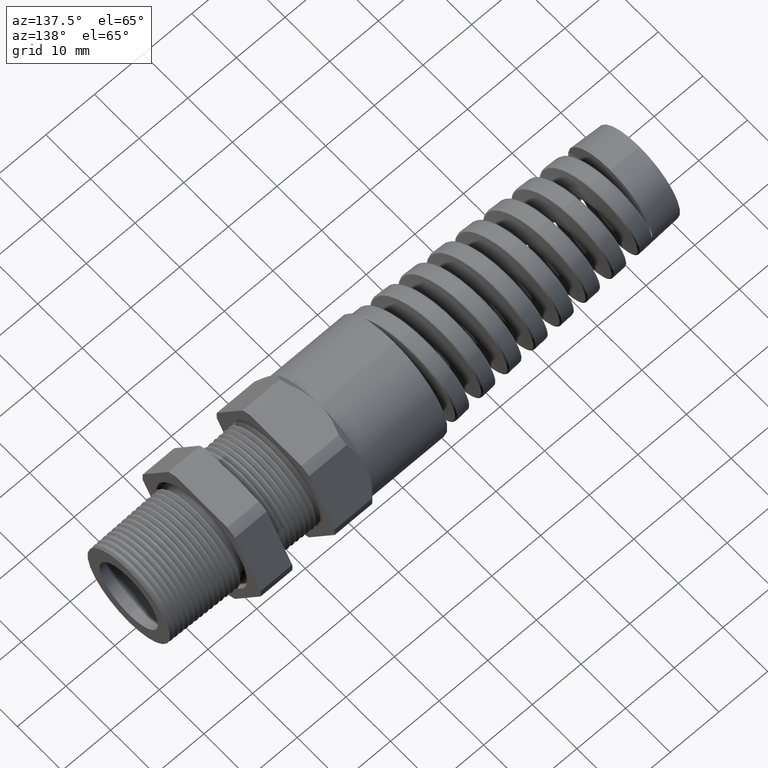
[diagram: clean part render]
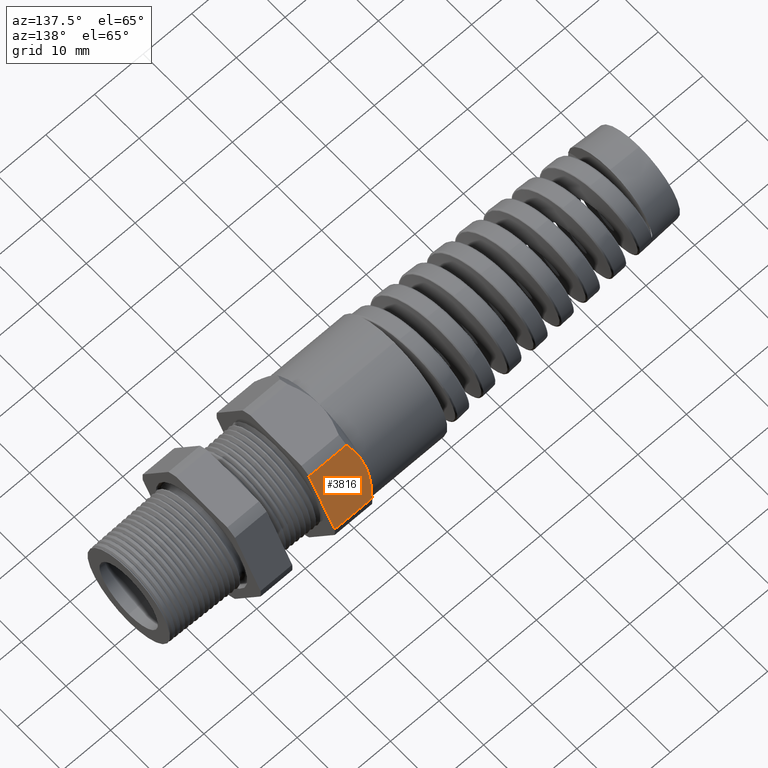
[diagram: same view with one face highlighted and labeled with its STEP entity id]
A machine part, auxiliary view. The second image highlights one B-rep face of the part: STEP entity #3816.
In plain terms, the highlighted planar face has unit normal (0, 0.866, 0.5).
Its self-contained STEP definition (entity closure, byte-faithful):
#2453 = CARTESIAN_POINT ( 'NONE',  ( -1.263700787401574700, 0.4070319397786864000, 0.2350000000000000100 ) ) ;
#2599 = DIRECTION ( 'NONE',  ( 0.0000000000000000000, -0.4999999999999998300, 0.8660254037844388200 ) ) ;
#2600 = VECTOR ( 'NONE', #2599, 39.37007874015748100 ) ;
#2601 = CARTESIAN_POINT ( 'NONE',  ( -0.9093700787401572900, 0.5057819397786863500, 0.06395998275257340500 ) ) ;
#2602 = LINE ( 'NONE', #2601, #2600 ) ;
#3780 = EDGE_LOOP ( 'NONE', ( #3786, #3809, #3807, #3806, #7971 ) ) ;
#3786 = ORIENTED_EDGE ( 'NONE', *, *, #3821, .T. ) ;
#3787 = VERTEX_POINT ( 'NONE', #5885 ) ;
#3804 = VERTEX_POINT ( 'NONE', #5902 ) ;
#3806 = ORIENTED_EDGE ( 'NONE', *, *, #3813, .F. ) ;
#3807 = ORIENTED_EDGE ( 'NONE', *, *, #3810, .T. ) ;
#3808 = VERTEX_POINT ( 'NONE', #5901 ) ;
#3809 = ORIENTED_EDGE ( 'NONE', *, *, #3812, .T. ) ;
#3810 = EDGE_CURVE ( 'NONE', #7677, #3804, #5900, .T. ) ;
#3812 = EDGE_CURVE ( 'NONE', #3787, #7677, #5953, .T. ) ;
#3813 = EDGE_CURVE ( 'NONE', #3808, #3804, #5952, .T. ) ;
#3816 = ADVANCED_FACE ( 'NONE', ( #5988 ), #5987, .T. ) ;
#3817 = VERTEX_POINT ( 'NONE', #5982 ) ;
#3821 = EDGE_CURVE ( 'NONE', #3817, #3787, #5980, .T. ) ;
#5885 = CARTESIAN_POINT ( 'NONE',  ( -1.212000787401574600, 0.5202473208008776600, 0.03890520787129533900 ) ) ;
#5900 = B_SPLINE_CURVE_WITH_KNOTS ( 'NONE', 3,
 ( #5959, #5958, #5957, #5956, #5955, #5954 ),
 .UNSPECIFIED., .F., .F.,
 ( 4, 2, 4 ),
 ( 0.005903107334592303800, 0.008852512982428763200, 0.01180191863026522300 ),
 .UNSPECIFIED. ) ;
#5901 = CARTESIAN_POINT ( 'NONE',  ( -0.9093700787401572900, 0.2938165587564949300, 0.4310947921287048300 ) ) ;
#5902 = CARTESIAN_POINT ( 'NONE',  ( -1.212000787401574600, 0.2938165587564949300, 0.4310947921287048300 ) ) ;
#5939 = DIRECTION ( 'NONE',  ( -1.000000000000000000, 0.0000000000000000000, 0.0000000000000000000 ) ) ;
#5940 = VECTOR ( 'NONE', #5939, 39.37007874015748100 ) ;
#5941 = CARTESIAN_POINT ( 'NONE',  ( -1.263700787401574700, 0.4070319397786864000, 0.2350000000000000100 ) ) ;
#5942 = CARTESIAN_POINT ( 'NONE',  ( -1.263700787401574400, 0.4119326305003308500, 0.2265117546779303900 ) ) ;
#5943 = CARTESIAN_POINT ( 'NONE',  ( -1.263390652723889400, 0.4168781440523186600, 0.2179458739363668000 ) ) ;
#5944 = CARTESIAN_POINT ( 'NONE',  ( -1.262158857016450800, 0.4267040029977488500, 0.2009269870148766300 ) ) ;
#5945 = CARTESIAN_POINT ( 'NONE',  ( -1.261241224626671500, 0.4315793332085026700, 0.1924826673861760000 ) ) ;
#5946 = CARTESIAN_POINT ( 'NONE',  ( -1.257637759355490800, 0.4460993342073096300, 0.1673332879302911700 ) ) ;
#5947 = CARTESIAN_POINT ( 'NONE',  ( -1.254101093296777100, 0.4556379823307485400, 0.1508118647449735200 ) ) ;
#5948 = CARTESIAN_POINT ( 'NONE',  ( -1.240557452884053700, 0.4838883643614172400, 0.1018807677346242100 ) ) ;
#5949 = CARTESIAN_POINT ( 'NONE',  ( -1.227634833077310800, 0.5022367785154768800, 0.07010038218147686400 ) ) ;
#5950 = CARTESIAN_POINT ( 'NONE',  ( -1.212000787401574600, 0.5202473208008776600, 0.03890520787129533900 ) ) ;
#5951 = CARTESIAN_POINT ( 'NONE',  ( 0.2800000000000000300, 0.2938165587564949300, 0.4310947921287048300 ) ) ;
#5952 = LINE ( 'NONE', #5951, #5940 ) ;
#5953 = B_SPLINE_CURVE_WITH_KNOTS ( 'NONE', 3,
 ( #5950, #5949, #5948, #5947, #5946, #5945, #5944, #5943, #5942, #5941 ),
 .UNSPECIFIED., .F., .F.,
 ( 4, 2, 2, 2, 4 ),
 ( 2.483251536669718400E-007, 0.002951677829872981700, 0.004427392582232641100, 0.005165249958412472000, 0.005903107334592303800 ),
 .UNSPECIFIED. ) ;
#5954 = CARTESIAN_POINT ( 'NONE',  ( -1.212000787401574600, 0.2938165587564949300, 0.4310947921287048300 ) ) ;
#5955 = CARTESIAN_POINT ( 'NONE',  ( -1.227654196895982200, 0.3118494083116972200, 0.3998609804938486100 ) ) ;
#5956 = CARTESIAN_POINT ( 'NONE',  ( -1.240759070462158500, 0.3304876304616242700, 0.3675786327674193700 ) ) ;
#5957 = CARTESIAN_POINT ( 'NONE',  ( -1.258755119221330900, 0.3682441305491643300, 0.3021824562998214300 ) ) ;
#5958 = CARTESIAN_POINT ( 'NONE',  ( -1.263700787401574400, 0.3874426189162286100, 0.2689296990195457800 ) ) ;
#5959 = CARTESIAN_POINT ( 'NONE',  ( -1.263700787401574700, 0.4070319397786864000, 0.2350000000000000100 ) ) ;
#5977 = DIRECTION ( 'NONE',  ( -1.000000000000000000, 0.0000000000000000000, 0.0000000000000000000 ) ) ;
#5978 = VECTOR ( 'NONE', #5977, 39.37007874015748100 ) ;
#5979 = CARTESIAN_POINT ( 'NONE',  ( 0.2800000000000000300, 0.5202473208008776600, 0.03890520787129531800 ) ) ;
#5980 = LINE ( 'NONE', #5979, #5978 ) ;
#5982 = CARTESIAN_POINT ( 'NONE',  ( -0.9093700787401572900, 0.5202473208008776600, 0.03890520787129531800 ) ) ;
#5983 = DIRECTION ( 'NONE',  ( 0.0000000000000000000, -0.4999999999999998300, 0.8660254037844388200 ) ) ;
#5984 = DIRECTION ( 'NONE',  ( 0.0000000000000000000, 0.8660254037844388200, 0.4999999999999998300 ) ) ;
#5985 = CARTESIAN_POINT ( 'NONE',  ( 0.2800000000000000300, 0.2938165587564949300, 0.4310947921287048800 ) ) ;
#5986 = AXIS2_PLACEMENT_3D ( 'NONE', #5985, #5984, #5983 ) ;
#5987 = PLANE ( 'NONE',  #5986 ) ;
#5988 = FACE_OUTER_BOUND ( 'NONE', #3780, .T. ) ;
#7677 = VERTEX_POINT ( 'NONE', #2453 ) ;
#7971 = ORIENTED_EDGE ( 'NONE', *, *, #7973, .F. ) ;
#7973 = EDGE_CURVE ( 'NONE', #3817, #3808, #2602, .T. ) ;